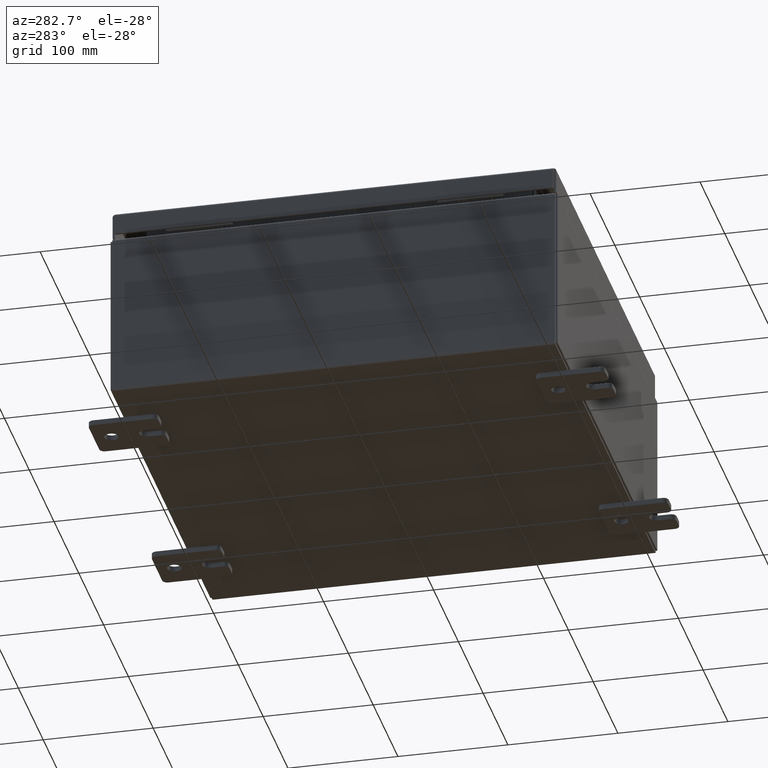
[diagram: clean part render]
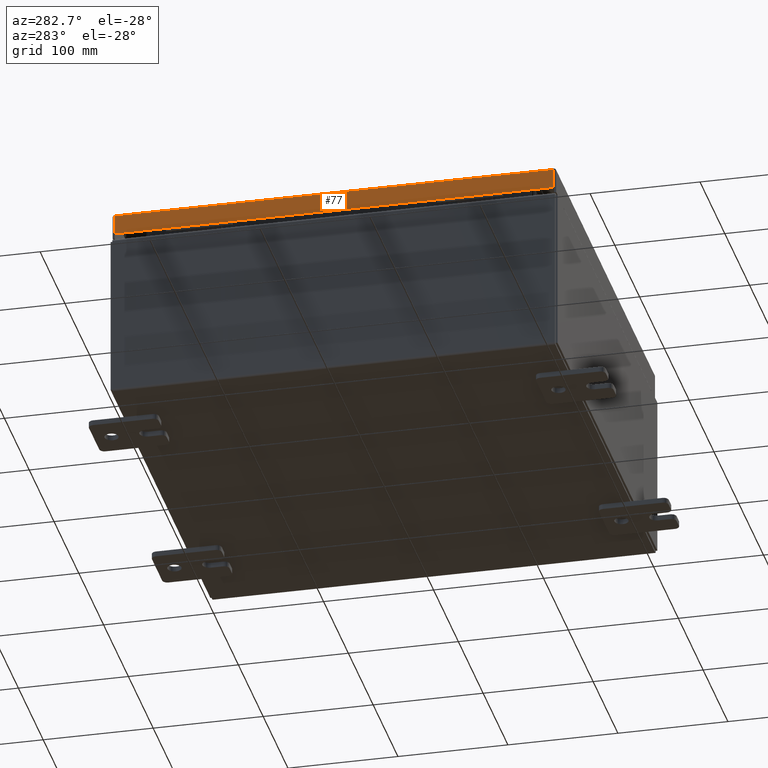
[diagram: same view with one face highlighted and labeled with its STEP entity id]
A machine part, auxiliary view. The second image highlights one B-rep face of the part: STEP entity #77.
In plain terms, the highlighted planar face has unit normal (1, 0, -0).
Its self-contained STEP definition (entity closure, byte-faithful):
#77 = ADVANCED_FACE ( 'NONE', ( #61369 ), #19596, .F. ) ;
#176 = CARTESIAN_POINT ( 'NONE',  ( -7.937500000000002700, -7.937500000000000000, -0.7949999999999997100 ) ) ;
#4373 = LINE ( 'NONE', #12751, #41457 ) ;
#8786 = ORIENTED_EDGE ( 'NONE', *, *, #47145, .F. ) ;
#10414 = CARTESIAN_POINT ( 'NONE',  ( -7.937500000000000000, 7.848657864376269400, 7.915104547580097900E-014 ) ) ;
#12751 = CARTESIAN_POINT ( 'NONE',  ( -7.937500000000000000, -7.848657864376269400, -0.07469999999999976700 ) ) ;
#15149 = DIRECTION ( 'NONE',  ( -3.034122441942816500E-015, 0.0000000000000000000, -1.000000000000000000 ) ) ;
#15194 = DIRECTION ( 'NONE',  ( 1.000000000000000000, 3.654886874889598900E-031, -3.034122441942816500E-015 ) ) ;
#17681 = VERTEX_POINT ( 'NONE', #20005 ) ;
#18551 = ORIENTED_EDGE ( 'NONE', *, *, #30763, .T. ) ;
#19596 = PLANE ( 'NONE',  #41307 ) ;
#20005 = CARTESIAN_POINT ( 'NONE',  ( -7.937500000000000000, -7.848657864376269400, -0.08770000000000007000 ) ) ;
#21512 = VERTEX_POINT ( 'NONE', #33443 ) ;
#23055 = CARTESIAN_POINT ( 'NONE',  ( -7.937500000000002700, 7.848657864376274800, -0.7949999999999978200 ) ) ;
#23936 = EDGE_LOOP ( 'NONE', ( #46882, #18551, #8786, #24333 ) ) ;
#24333 = ORIENTED_EDGE ( 'NONE', *, *, #40554, .F. ) ;
#24468 = DIRECTION ( 'NONE',  ( 4.379057701015054300E-047, 1.000000000000000000, 1.204594390907076900E-016 ) ) ;
#25455 = VERTEX_POINT ( 'NONE', #26038 ) ;
#26038 = CARTESIAN_POINT ( 'NONE',  ( -7.937500000000002700, -7.848657864376264100, -0.7949999999999996000 ) ) ;
#28839 = CARTESIAN_POINT ( 'NONE',  ( -7.937500000000000000, -2.901066456943618900E-030, 2.434416053893268900E-014 ) ) ;
#29819 = VECTOR ( 'NONE', #49162, 39.37007874015748100 ) ;
#30763 = EDGE_CURVE ( 'NONE', #21512, #55515, #42713, .T. ) ;
#31205 = DIRECTION ( 'NONE',  ( 3.654886874889599300E-031, -1.000000000000000000, -1.077392013397602500E-045 ) ) ;
#33282 = VECTOR ( 'NONE', #24468, 39.37007874015748100 ) ;
#33443 = CARTESIAN_POINT ( 'NONE',  ( -7.937500000000000000, 7.848657864376270300, -0.08770000000000004200 ) ) ;
#40554 = EDGE_CURVE ( 'NONE', #17681, #25455, #4373, .T. ) ;
#41307 = AXIS2_PLACEMENT_3D ( 'NONE', #28839, #15194, #15149 ) ;
#41457 = VECTOR ( 'NONE', #51447, 39.37007874015748100 ) ;
#42713 = LINE ( 'NONE', #10414, #29819 ) ;
#46044 = VECTOR ( 'NONE', #31205, 39.37007874015748100 ) ;
#46882 = ORIENTED_EDGE ( 'NONE', *, *, #50644, .F. ) ;
#47145 = EDGE_CURVE ( 'NONE', #25455, #55515, #47694, .T. ) ;
#47694 = LINE ( 'NONE', #176, #33282 ) ;
#49162 = DIRECTION ( 'NONE',  ( -3.034122441942816500E-015, 6.982962677686265900E-015, -1.000000000000000000 ) ) ;
#50450 = CARTESIAN_POINT ( 'NONE',  ( -7.937500000000000000, -7.937500000000000000, -0.08770000000000004200 ) ) ;
#50644 = EDGE_CURVE ( 'NONE', #21512, #17681, #58795, .T. ) ;
#51447 = DIRECTION ( 'NONE',  ( -3.034122441942816500E-015, 6.982962677686265900E-015, -1.000000000000000000 ) ) ;
#55515 = VERTEX_POINT ( 'NONE', #23055 ) ;
#58795 = LINE ( 'NONE', #50450, #46044 ) ;
#61369 = FACE_OUTER_BOUND ( 'NONE', #23936, .T. ) ;